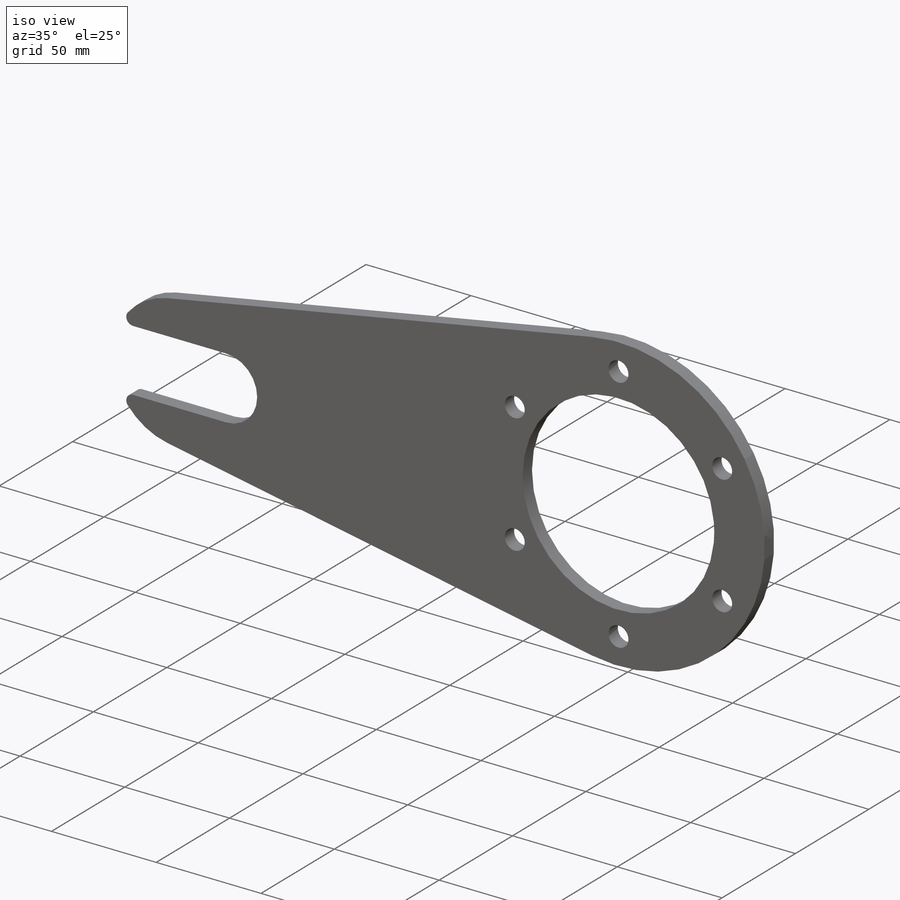
[diagram: iso view]
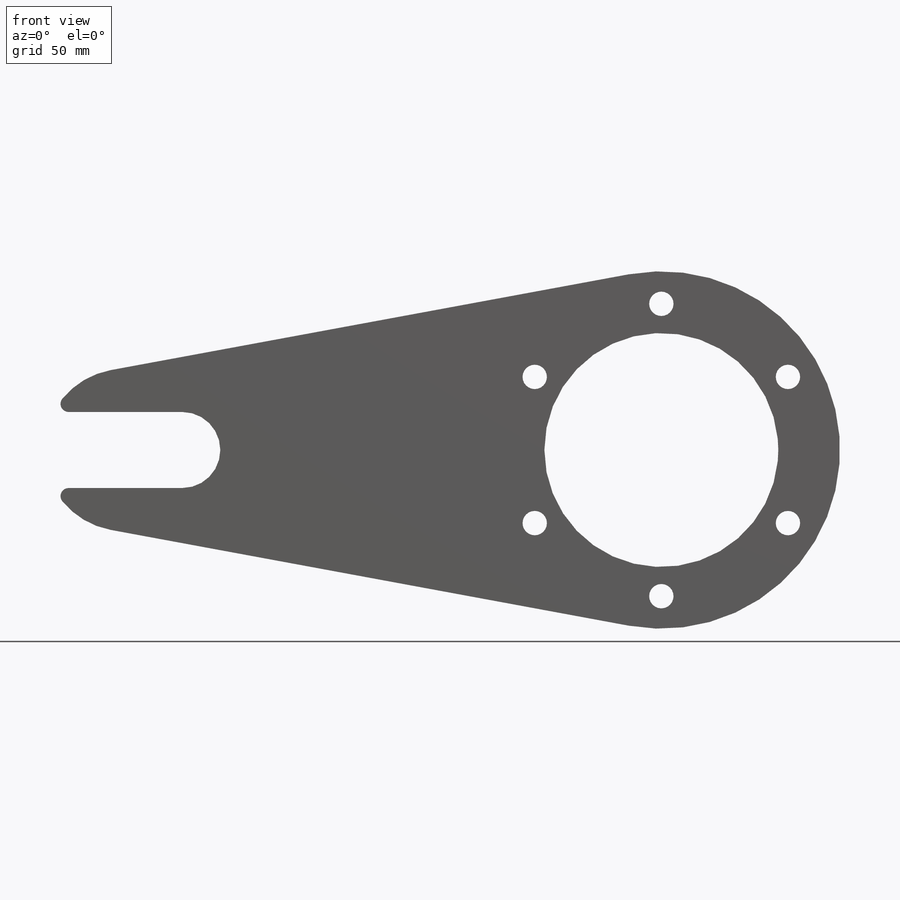
[diagram: front view]
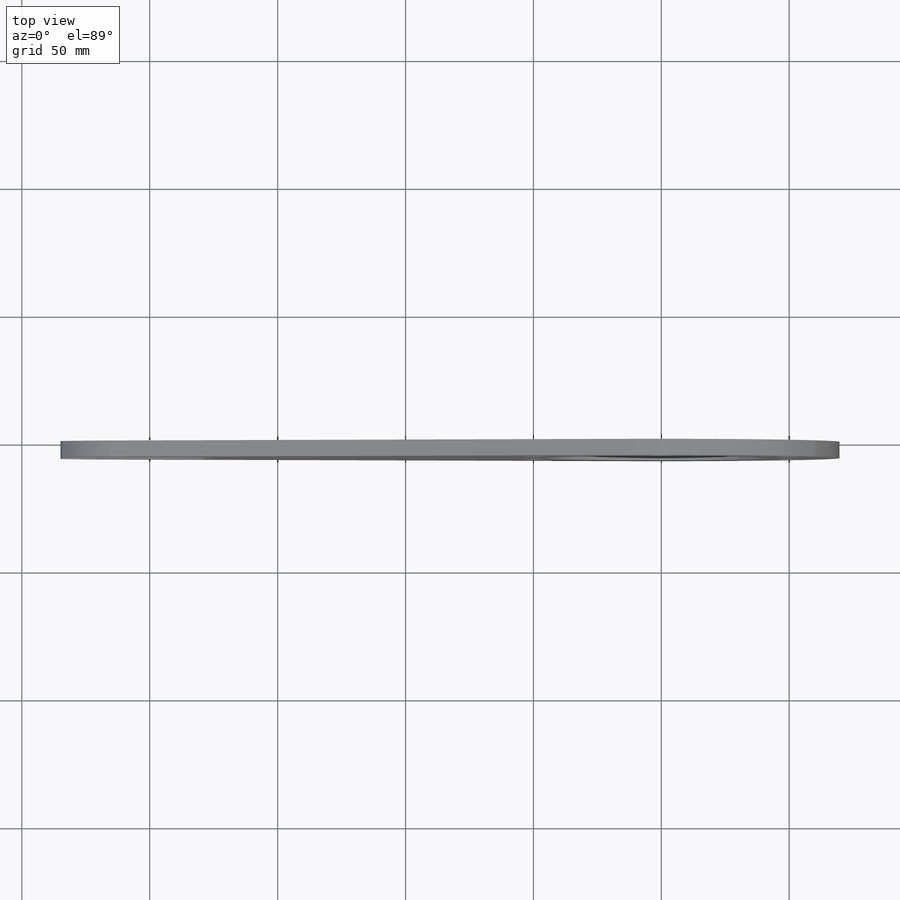
[diagram: top view]
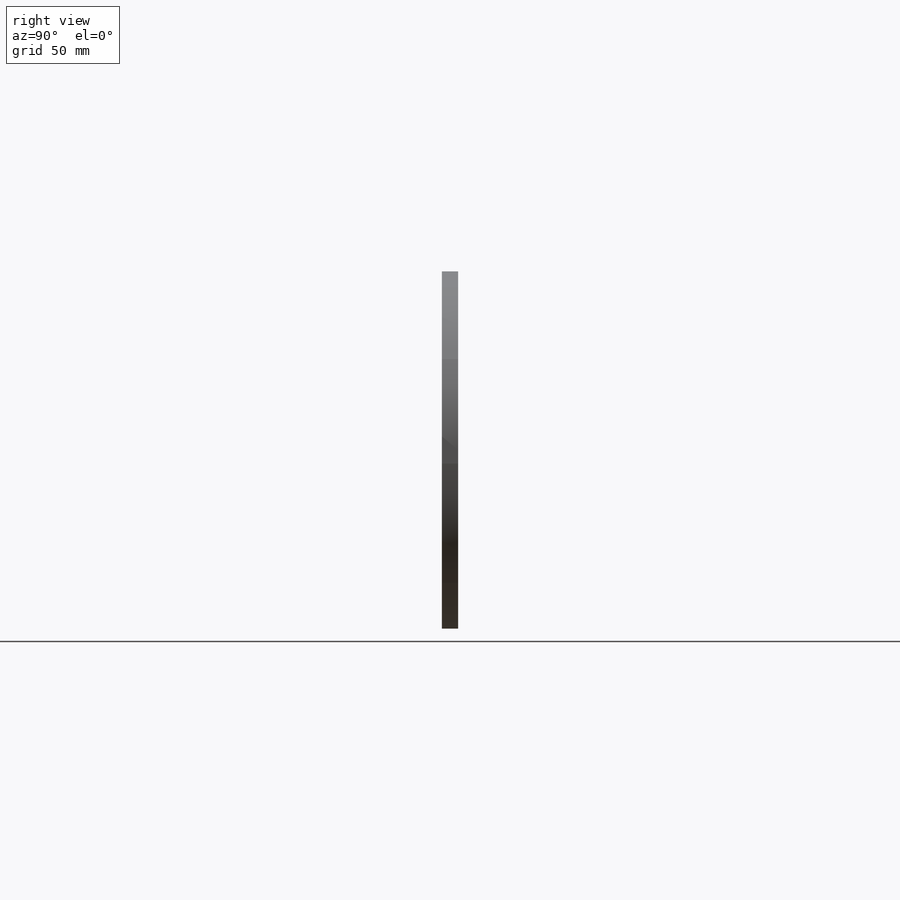
[diagram: right view]
SOLIDWORKS PART (.sldprt)
format: sldprt  version: not decoded by parser v0  size: 250,368 bytes
history: native  units: mm
features: sketch x3, material x1, extrude x1, plane x1, fillet x1 (+11 scaffold rows collapsed)
feature tree (18):
  scaffold x11  (default folders/planes/origin — collapsed)
  material  "Material <not specified>"
  sketch  "Sketch1"  dims[c1.D1=139.7mm c1.D2=63.5mm c1.D4=114.3mm c1.D5=9.525mm c1.D6=63.5mm c1.D7=91.44mm c1.D8=50.8mm c1.D10=6.35mm c1.D11=6.35mm c1.D9=31.75mm c2.D8=14.859mm c2.D9=3.175mm c2.D3=209.55mm c2.D10=44.45mm c3.D9=9.525mm c3.D10=25.4mm c3.D6=6.0]
  extrude  "Boss-Extrude1"  Depth=6.35mm
  plane  "Plane1"  Offset=19.05mm
  sketch  "Sketch3"  dims[D1=6.35mm]
  fillet  "Fillet2"  Radius=0.79375mm
  sketch  "Sketch4"  dims[D1=304.8mm D2=165.1mm D3=330.2mm]
decode coverage: 5 of 5 modeling features carry decoded parameters
note: suppression state not decoded; provenance and decode notes live in map.json
